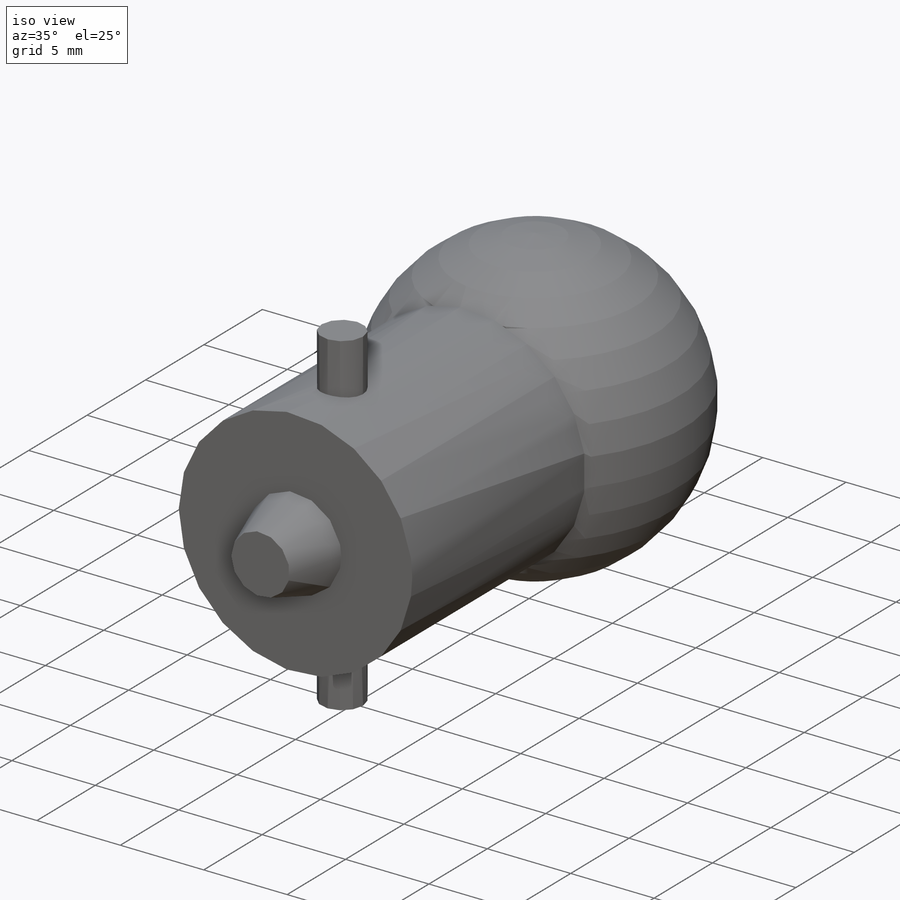
[diagram: iso view]
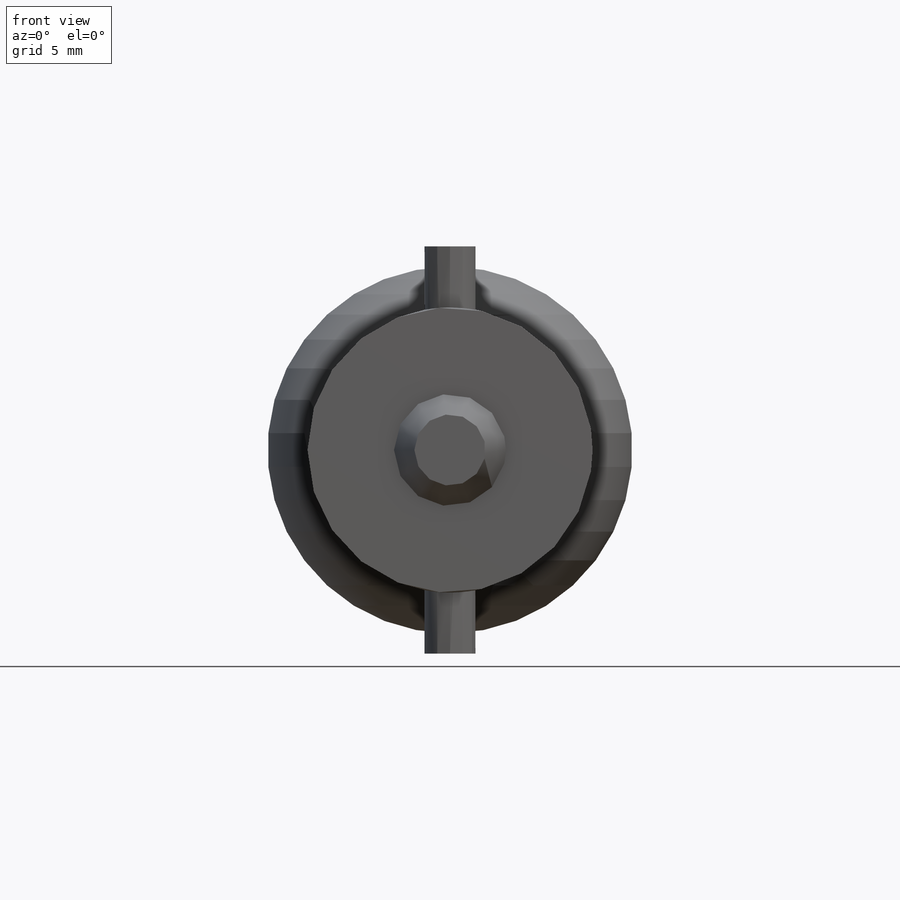
[diagram: front view]
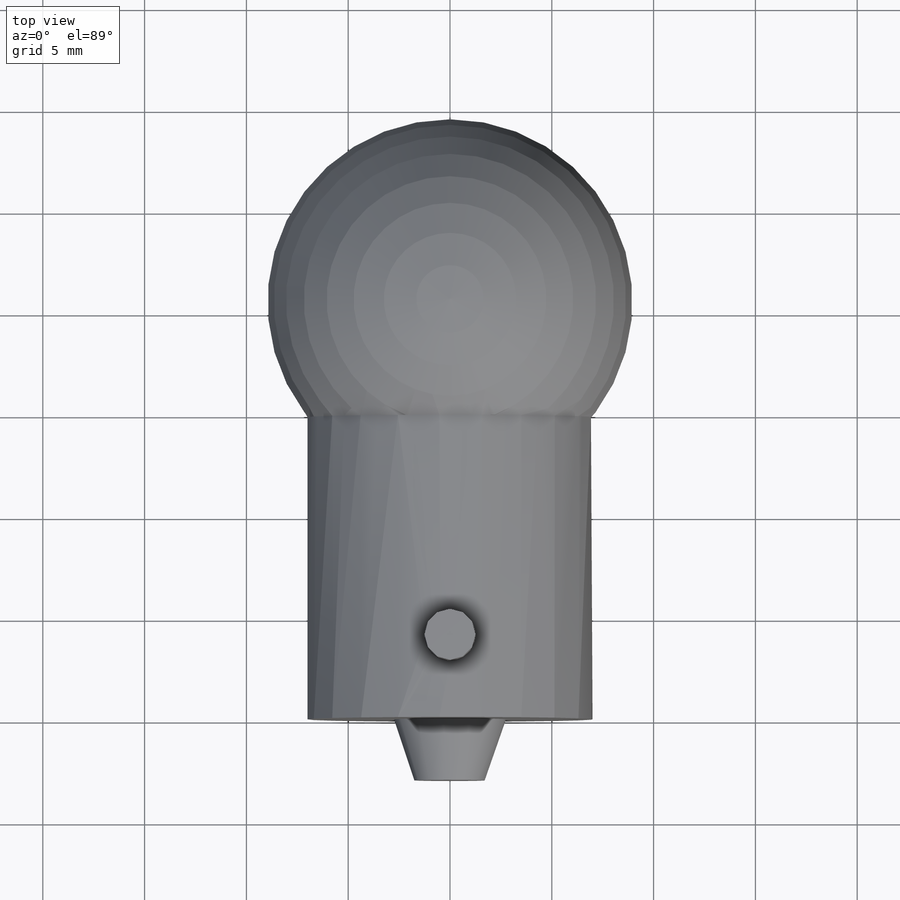
[diagram: top view]
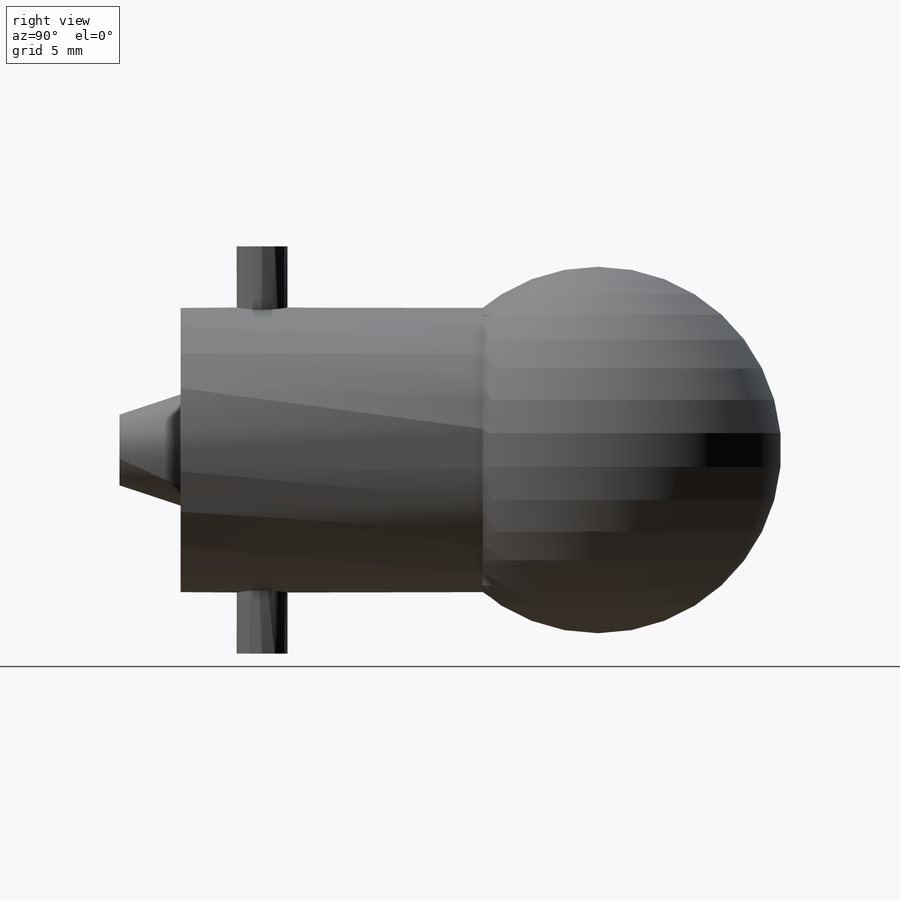
[diagram: right view]
SOLIDWORKS PART (.sldprt)
format: sldprt  version: not decoded by parser v0  size: 191,488 bytes
history: native  units: mm
features: sketch x4, plane x3, extrude x2, revolve x2, material x1 + 1 further entry (+8 scaffold rows collapsed)
feature tree (21):
  scaffold x8  (default folders/planes/origin — collapsed)
  material  "Matériau <non spécifié>"
  "Corps de surface"
  plane  "Face"
  plane  "Dessus"
  plane  "Droite"
  sketch  "Esquisse1"  dims[D1=14.0mm]
  extrude  "Corps"  Depth=15mm
  sketch  "Esquisse3"  dims[c1.D1=9.0mm c1.D2=20.5mm c2.D1=20.5mm]
  revolve  "Verre"  Angle=360deg
  sketch  "Esquisse4"  dims[D1=2.5mm D2=4.0mm]
  extrude  "Baillonettes"  Depth=20mm
  sketch  "Esquisse5"  dims[D1=3.0mm D2=1.75mm D3=2.75mm]
  revolve  "Culot"  Angle=360deg
decode coverage: 8 of 8 modeling features carry decoded parameters; 1 rows unclassified (native names shown)
note: suppression state not decoded; provenance and decode notes live in map.json
